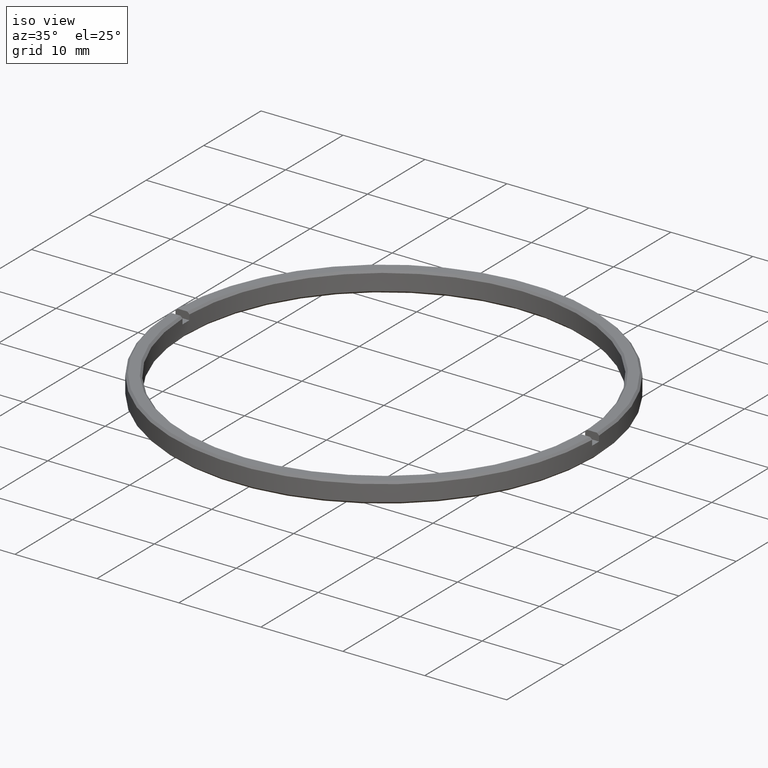
[diagram: clean part render]
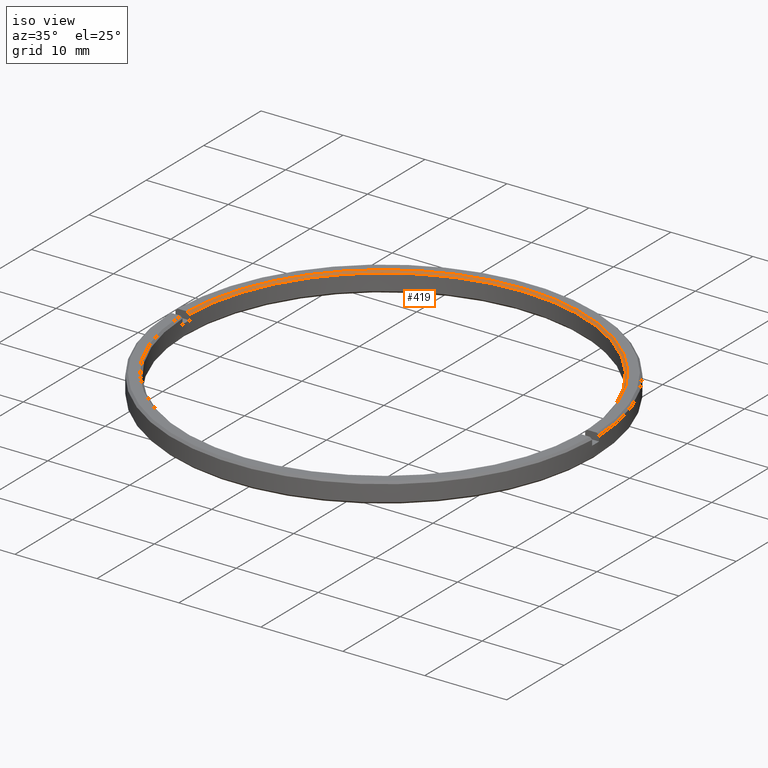
[diagram: same view with one face highlighted and labeled with its STEP entity id]
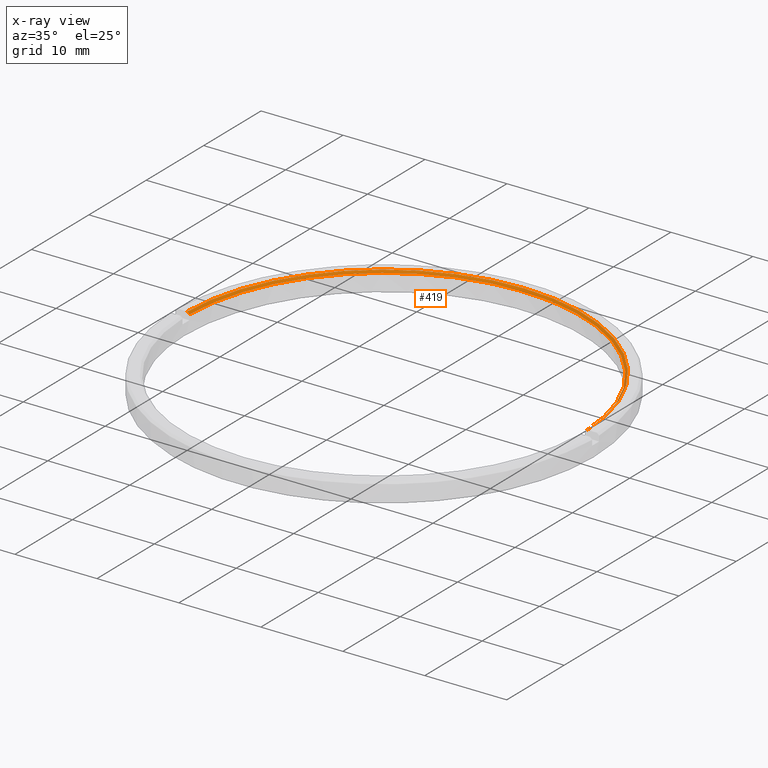
[diagram: x-ray of the same camera — body ghosted, the highlighted face saturated]
A machine part, iso view. The second image highlights one B-rep face of the part: STEP entity #419.
The next image is the same camera in x-ray: the body ghosted, the highlighted face saturated — about 0% of this face is hidden behind the body in this view.
In plain terms, the highlighted conical surface has half-angle 45 deg.
Its self-contained STEP definition (entity closure, byte-faithful):
#2 = AXIS2_PLACEMENT_3D ( 'NONE', #207, #560, #423 ) ;
#4 = ORIENTED_EDGE ( 'NONE', *, *, #190, .T. ) ;
#35 = DIRECTION ( 'NONE',  ( 0.000000000000000000, -1.000000000000000000, -3.030971715756955358E-30 ) ) ;
#80 = FACE_OUTER_BOUND ( 'NONE', #362, .T. ) ;
#111 = CARTESIAN_POINT ( 'NONE',  ( 24.30926316512926988, 0.5999999999996008526, -0.08333346386029805153 ) ) ;
#126 = CARTESIAN_POINT ( 'NONE',  ( 24.14254543332124214, 0.5999999999996008526, -0.2500000000001449396 ) ) ;
#159 = B_SPLINE_CURVE_WITH_KNOTS ( 'NONE', 3,
 ( #409, #452, #589, #230 ),
 .UNSPECIFIED., .F., .F.,
 ( 4, 4 ),
 ( 5.603463398937076117E-15, 0.0003536074190670393481 ),
 .UNSPECIFIED. ) ;
#190 = EDGE_CURVE ( 'NONE', #454, #237, #432, .T. ) ;
#197 = CARTESIAN_POINT ( 'NONE',  ( 24.22590436582019890, 0.5999999999996008526, -0.1666667985457844503 ) ) ;
#207 = CARTESIAN_POINT ( 'NONE',  ( 0.000000000000000000, -7.536886096115486511E-31, -3.512815038852896158E-14 ) ) ;
#215 = EDGE_CURVE ( 'NONE', #264, #237, #216, .T. ) ;
#216 = CIRCLE ( 'NONE', #2, 24.39999999999996660 ) ;
#230 = CARTESIAN_POINT ( 'NONE',  ( -24.14254543332135938, 0.5999999999996008526, -0.2500000000003254064 ) ) ;
#233 = CIRCLE ( 'NONE', #258, 24.14999999999999858 ) ;
#237 = VERTEX_POINT ( 'NONE', #332 ) ;
#258 = AXIS2_PLACEMENT_3D ( 'NONE', #447, #312, #455 ) ;
#264 = VERTEX_POINT ( 'NONE', #583 ) ;
#266 = CARTESIAN_POINT ( 'NONE',  ( -24.14254543332135938, 0.5999999999996008526, -0.2500000000003254064 ) ) ;
#267 = DIRECTION ( 'NONE',  ( 0.000000000000000000, -2.904681227600415756E-30, 1.000000000000000000 ) ) ;
#283 = ORIENTED_EDGE ( 'NONE', *, *, #480, .T. ) ;
#295 = ORIENTED_EDGE ( 'NONE', *, *, #215, .F. ) ;
#298 = VERTEX_POINT ( 'NONE', #266 ) ;
#312 = DIRECTION ( 'NONE',  ( -3.081487911019577365E-32, 3.014754438446559643E-30, -1.000000000000000000 ) ) ;
#318 = ORIENTED_EDGE ( 'NONE', *, *, #397, .T. ) ;
#332 = CARTESIAN_POINT ( 'NONE',  ( 24.39262183530128425, 0.5999999999998090194, 3.398310303013559788E-13 ) ) ;
#357 = CARTESIAN_POINT ( 'NONE',  ( 0.000000000000000000, -7.536886096117803908E-31, 4.466912950640278268E-14 ) ) ;
#362 = EDGE_LOOP ( 'NONE', ( #295, #283, #318, #4 ) ) ;
#377 = CARTESIAN_POINT ( 'NONE',  ( 24.14254543332124214, 0.5999999999996008526, -0.2500000000001449396 ) ) ;
#397 = EDGE_CURVE ( 'NONE', #298, #454, #233, .T. ) ;
#409 = CARTESIAN_POINT ( 'NONE',  ( -24.39262183529694283, 0.5999999999998090194, -3.999589009980260594E-12 ) ) ;
#419 = ADVANCED_FACE ( 'NONE', ( #80 ), #594, .F. ) ;
#423 = DIRECTION ( 'NONE',  ( 0.000000000000000000, -1.000000000000000000, -2.778390739443884912E-30 ) ) ;
#432 = B_SPLINE_CURVE_WITH_KNOTS ( 'NONE', 3,
 ( #377, #197, #111, #515 ),
 .UNSPECIFIED., .F., .F.,
 ( 4, 4 ),
 ( 6.428525793969973740E-17, 0.0003536074190786732169 ),
 .UNSPECIFIED. ) ;
#447 = CARTESIAN_POINT ( 'NONE',  ( 6.933347799793883762E-32, 2.775557561562890720E-14, -0.2500000000000557332 ) ) ;
#452 = CARTESIAN_POINT ( 'NONE',  ( -24.30926316512347540, 0.5999999999996008526, -0.08333346386608850298 ) ) ;
#454 = VERTEX_POINT ( 'NONE', #126 ) ;
#455 = DIRECTION ( 'NONE',  ( 0.000000000000000000, -1.000000000000000000, 0.000000000000000000 ) ) ;
#480 = EDGE_CURVE ( 'NONE', #264, #298, #159, .T. ) ;
#493 = AXIS2_PLACEMENT_3D ( 'NONE', #357, #267, #35 ) ;
#515 = CARTESIAN_POINT ( 'NONE',  ( 24.39262183530128425, 0.5999999999998090194, 3.398310303013559788E-13 ) ) ;
#560 = DIRECTION ( 'NONE',  ( -0.000000000000000000, 2.904681227600415756E-30, -1.000000000000000000 ) ) ;
#583 = CARTESIAN_POINT ( 'NONE',  ( -24.39262183529694283, 0.5999999999998090194, -3.999589009980260594E-12 ) ) ;
#589 = CARTESIAN_POINT ( 'NONE',  ( -24.22590436581729634, 0.5999999999996008526, -0.1666667985486898484 ) ) ;
#594 = CONICAL_SURFACE ( 'NONE', #493, 24.40000000000004832, 0.7853981633974569387 ) ;